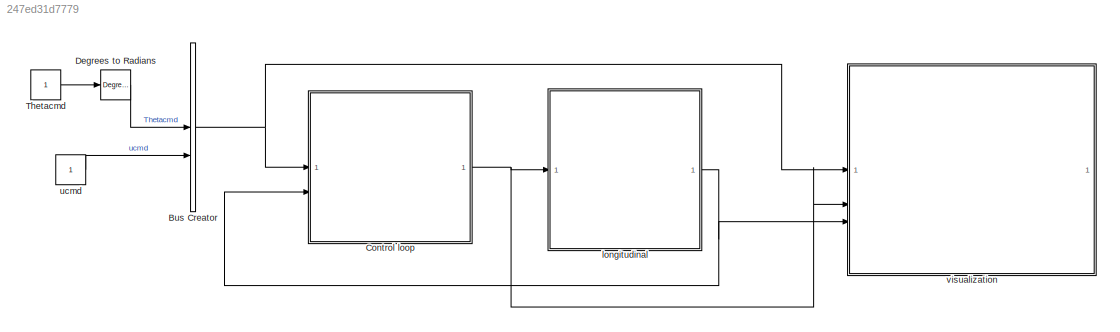
MODEL slx_247ed31d7779
KIND model
CONFIG AbsTol = auto
CONFIG EnableMultiTasking = off
CONFIG FixedStep = auto
CONFIG MaxStep = auto
CONFIG MinStep = auto
CONFIG RelTol = 1e-3
CONFIG SampleTimeConstraint = Unconstrained
CONFIG SolverName = VariableStepAuto
CONFIG StartTime = 0.0
CONFIG StopTime = 10.0
BLOCK [BusCreator] Bus Creator
  DisplayOption = bar
  InheritFromInputs = on
  Inputs = 2
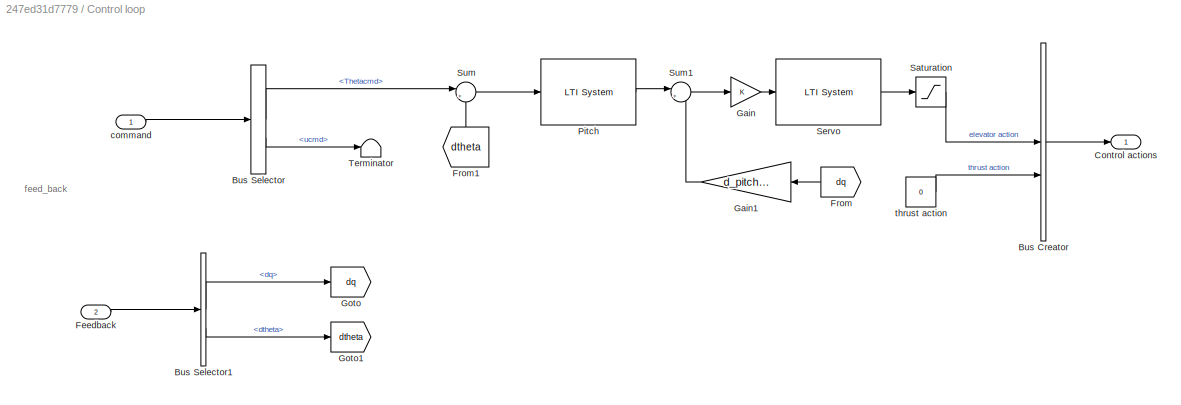
BLOCK [SubSystem] Control loop
BLOCK [BusCreator] Control loop/Bus Creator
  DisplayOption = bar
  InheritFromInputs = on
  Inputs = 2
BLOCK [BusSelector] Control loop/Bus Selector
  OutputSignals = Thetacmd,ucmd
BLOCK [BusSelector] Control loop/Bus Selector1
  OutputSignals = dq,dtheta
BLOCK [Outport] Control loop/Control actions
BLOCK [Inport] Control loop/Feedback
  Port = 2
BLOCK [From] Control loop/From
  GotoTag = dq
  NameLocation = top
BLOCK [From] Control loop/From1
  GotoTag = dtheta
  NameLocation = right
BLOCK [Gain] Control loop/Gain
BLOCK [Gain] Control loop/Gain1
  Gain = d_pitch.k
  NameLocation = top
BLOCK [Goto] Control loop/Goto
  GotoTag = dq
BLOCK [Goto] Control loop/Goto1
  GotoTag = dtheta
BLOCK [Reference] Control loop/Pitch  REF=cstblocks/LTI System
  SourceBlock = cstblocks/LTI System
  SourceType = LTI Block
BLOCK [Saturate] Control loop/Saturation
BLOCK [Reference] Control loop/Servo  REF=cstblocks/LTI System
  SourceBlock = cstblocks/LTI System
  SourceType = LTI Block
BLOCK [Sum] Control loop/Sum
  Inputs = |+-
BLOCK [Sum] Control loop/Sum1
  Inputs = |++
BLOCK [Terminator] Control loop/Terminator
BLOCK [Inport] Control loop/command
BLOCK [Constant] Control loop/thrust action
  Value = 0
BLOCK [Reference] Degrees to Radians  REF=simulink_extras/Transformations/Degrees to
Radians
  SourceBlock = simulink_extras/Transformations/Degrees to\nRadians
  SourceType = DegreesToRadians
BLOCK [Constant] Thetacmd
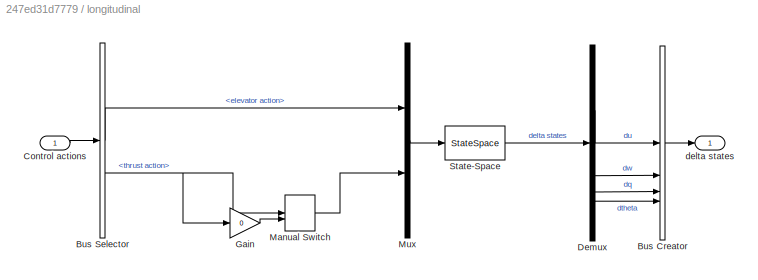
BLOCK [SubSystem] longitudinal
BLOCK [BusCreator] longitudinal/Bus Creator
  DisplayOption = bar
  InheritFromInputs = on
  Inputs = 4
BLOCK [BusSelector] longitudinal/Bus Selector
  OutputSignals = elevator action,thrust action
BLOCK [Inport] longitudinal/Control actions
BLOCK [Demux] longitudinal/Demux
BLOCK [Gain] longitudinal/Gain
  Gain = 0
BLOCK [ManualSwitch] longitudinal/Manual Switch
  CurrentSetting = 0
BLOCK [Mux] longitudinal/Mux
  DisplayOption = bar
  Inputs = 2
BLOCK [StateSpace] longitudinal/State-Space
  A = A_FL
  B = B_FL
  C = C_FL
  D = D_FL
  InitialCondition = 0
  ParameterTunability = Unconstrained
BLOCK [Outport] longitudinal/delta states
BLOCK [Constant] ucmd
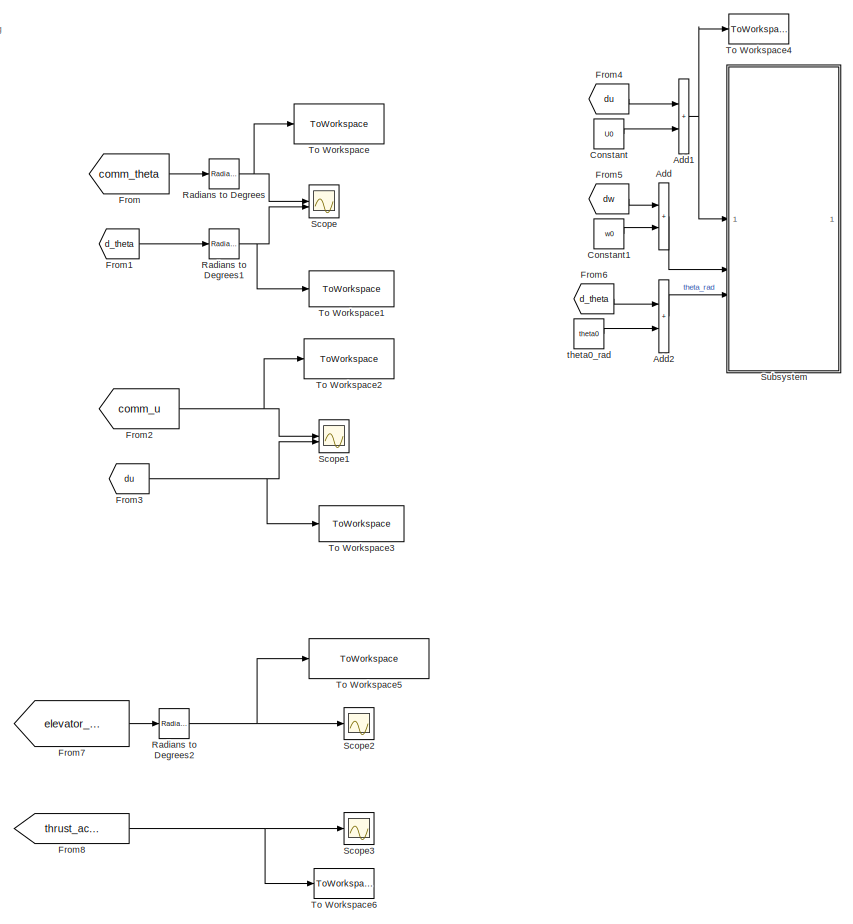
[diagram: visualization - part 1/2, right side, full height]
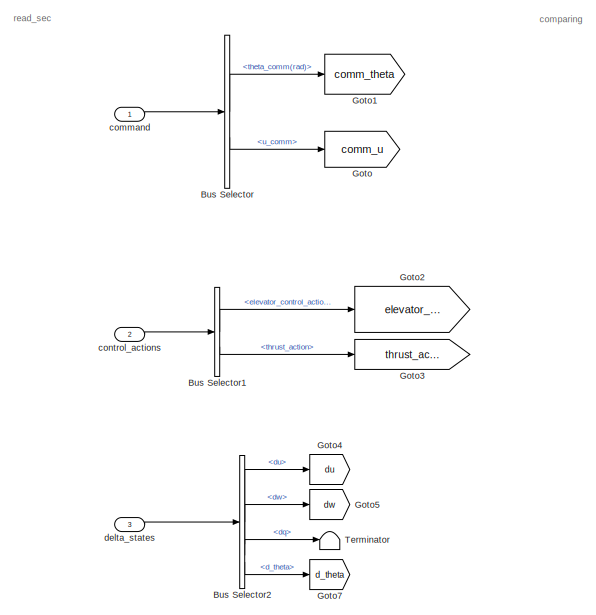
[diagram: visualization - part 2/2, middle left region]
BLOCK [SubSystem] visualization
BLOCK [Sum] visualization/Add
  IconShape = rectangular
BLOCK [Sum] visualization/Add1
  IconShape = rectangular
BLOCK [Sum] visualization/Add2
  IconShape = rectangular
BLOCK [BusSelector] visualization/Bus Selector
  OutputSignals = theta_comm(rad),u_comm
BLOCK [BusSelector] visualization/Bus Selector1
  OutputSignals = elevator_control_action,thrust_action
BLOCK [BusSelector] visualization/Bus Selector2
  OutputSignals = du,dw,dq,d_theta
BLOCK [Constant] visualization/Constant
  Value = U0
BLOCK [Constant] visualization/Constant1
  Value = w0
BLOCK [From] visualization/From
  GotoTag = comm_theta
BLOCK [From] visualization/From1
  GotoTag = d_theta
BLOCK [From] visualization/From2
  GotoTag = comm_u
BLOCK [From] visualization/From3
  GotoTag = du
BLOCK [From] visualization/From4
  GotoTag = du
BLOCK [From] visualization/From5
  GotoTag = dw
BLOCK [From] visualization/From6
  GotoTag = d_theta
BLOCK [From] visualization/From7
  GotoTag = elevator_action_rad
BLOCK [From] visualization/From8
  GotoTag = thrust_action
BLOCK [Goto] visualization/Goto
  GotoTag = comm_u
BLOCK [Goto] visualization/Goto1
  GotoTag = comm_theta
BLOCK [Goto] visualization/Goto2
  GotoTag = elevator_action_rad
BLOCK [Goto] visualization/Goto3
  GotoTag = thrust_action
BLOCK [Goto] visualization/Goto4
  GotoTag = du
BLOCK [Goto] visualization/Goto5
  GotoTag = dw
BLOCK [Goto] visualization/Goto7
  GotoTag = d_theta
BLOCK [Reference] visualization/Radians to Degrees  REF=simulink_extras/Transformations/Radians
to Degrees
  SourceBlock = simulink_extras/Transformations/Radians\nto Degrees
  SourceType = RadiansToDegrees
BLOCK [Reference] visualization/Radians to Degrees1  REF=simulink_extras/Transformations/Radians
to Degrees
  SourceBlock = simulink_extras/Transformations/Radians\nto Degrees
  SourceType = RadiansToDegrees
BLOCK [Reference] visualization/Radians to Degrees2  REF=simulink_extras/Transformations/Radians
to Degrees
  SourceBlock = simulink_extras/Transformations/Radians\nto Degrees
  SourceType = RadiansToDegrees
BLOCK [Scope] visualization/Scope
  Floating = off
  NumInputPorts = 2
  ScopeSpecificationString = Simulink.scopes.TimeScopeBlockCfg('CurrentConfiguration', extmgr.ConfigurationSet(extmgr.Configuration('Core','General UI',true,'FigureColor',[0 0 0]),extmgr.Configuration('Core','Source UI',true),extmgr.Configuration('Sources','WiredSimulink',true),extmgr.Configuration('Visuals','Time Domain',true,'SerializedDisplays',{struct('MinYLimReal','-2.37686','MaxYLimReal','21.39172','YLabelReal','','MinY...<+1523ch>
BLOCK [Scope] visualization/Scope1
  Floating = off
  NumInputPorts = 2
  ScopeSpecificationString = Simulink.scopes.TimeScopeBlockCfg('CurrentConfiguration', extmgr.ConfigurationSet(extmgr.Configuration('Core','General UI',true),extmgr.Configuration('Core','Source UI',true),extmgr.Configuration('Sources','WiredSimulink',true,'DataLoggingVariableName','ScopeData1'),extmgr.Configuration('Visuals','Time Domain',true,'SerializedDisplays',{struct('MinYLimReal','-1297.02637','MaxYLimReal','144.11404',...<+1394ch>
BLOCK [Scope] visualization/Scope2
  Floating = off
  NumInputPorts = 1
  ScopeSpecificationString = Simulink.scopes.TimeScopeBlockCfg('CurrentConfiguration', extmgr.ConfigurationSet(extmgr.Configuration('Core','General UI',true),extmgr.Configuration('Core','Source UI',true),extmgr.Configuration('Sources','WiredSimulink',true,'DataLoggingVariableName','ScopeData5'),extmgr.Configuration('Visuals','Time Domain',true,'SerializedDisplays',{struct('MinYLimReal','-23.84872','MaxYLimReal','3.14905','YLa...<+1412ch>
BLOCK [Scope] visualization/Scope3
  Floating = off
  NumInputPorts = 1
  ScopeSpecificationString = Simulink.scopes.TimeScopeBlockCfg('CurrentConfiguration', extmgr.ConfigurationSet(extmgr.Configuration('Core','General UI',true),extmgr.Configuration('Core','Source UI',true),extmgr.Configuration('Sources','WiredSimulink',true,'DataLoggingVariableName','ScopeData6'),extmgr.Configuration('Visuals','Time Domain',true),extmgr.Configuration('Tools','Plot Navigation',true),extmgr.Configuration('Tools',...<+40ch>
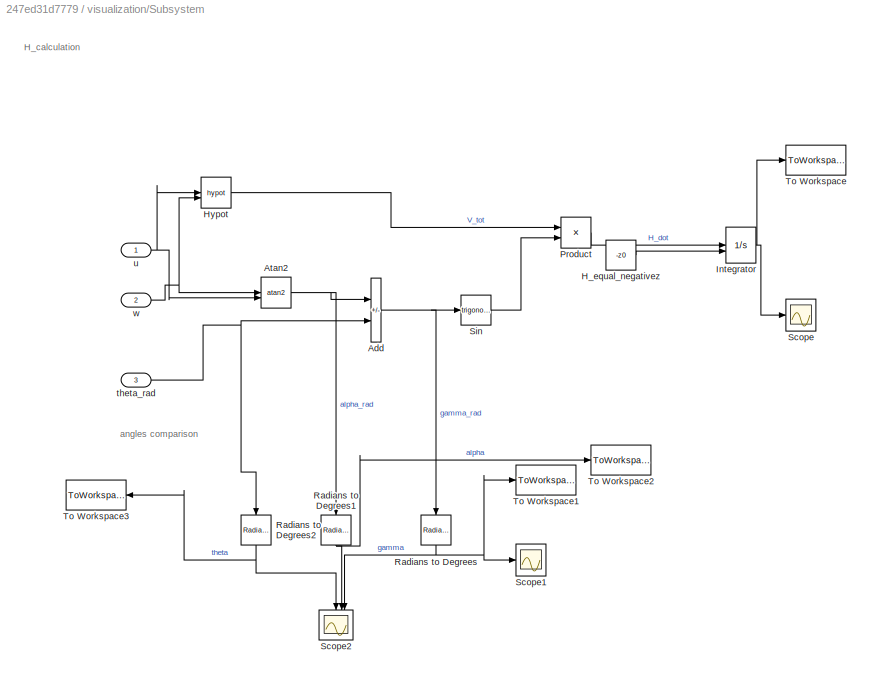
BLOCK [SubSystem] visualization/Subsystem
BLOCK [Sum] visualization/Subsystem/Add
  IconShape = rectangular
  Inputs = -+
BLOCK [Trigonometry] visualization/Subsystem/Atan2
  Operator = atan2
BLOCK [Constant] visualization/Subsystem/H_equal_negativez
  Value = -z0
BLOCK [Math] visualization/Subsystem/Hypot
  Operator = hypot
  SignedPower = on
BLOCK [Integrator] visualization/Subsystem/Integrator
  InitialConditionSource = external
BLOCK [Product] visualization/Subsystem/Product
BLOCK [Reference] visualization/Subsystem/Radians to Degrees  REF=simulink_extras/Transformations/Radians
to Degrees
  NameLocation = left
  SourceBlock = simulink_extras/Transformations/Radians\nto Degrees
  SourceType = RadiansToDegrees
BLOCK [Reference] visualization/Subsystem/Radians to Degrees1  REF=simulink_extras/Transformations/Radians
to Degrees
  NameLocation = left
  SourceBlock = simulink_extras/Transformations/Radians\nto Degrees
  SourceType = RadiansToDegrees
BLOCK [Reference] visualization/Subsystem/Radians to Degrees2  REF=simulink_extras/Transformations/Radians
to Degrees
  NameLocation = left
  SourceBlock = simulink_extras/Transformations/Radians\nto Degrees
  SourceType = RadiansToDegrees
BLOCK [Scope] visualization/Subsystem/Scope
  Floating = off
  NumInputPorts = 1
  ScopeSpecificationString = Simulink.scopes.TimeScopeBlockCfg('CurrentConfiguration', extmgr.ConfigurationSet(extmgr.Configuration('Core','General UI',true),extmgr.Configuration('Core','Source UI',true),extmgr.Configuration('Sources','WiredSimulink',true,'DataLoggingVariableName','ScopeData2'),extmgr.Configuration('Visuals','Time Domain',true,'SerializedDisplays',{struct('MinYLimReal','15532.36158','MaxYLimReal','25441.01896...<+1399ch>
BLOCK [Scope] visualization/Subsystem/Scope1
  Floating = off
  NumInputPorts = 1
  ScopeSpecificationString = Simulink.scopes.TimeScopeBlockCfg('CurrentConfiguration', extmgr.ConfigurationSet(extmgr.Configuration('Core','General UI',true),extmgr.Configuration('Core','Source UI',true),extmgr.Configuration('Sources','WiredSimulink',true,'DataLoggingVariableName','ScopeData3'),extmgr.Configuration('Visuals','Time Domain',true,'SerializedDisplays',{struct('MinYLimReal','-164.81905','MaxYLimReal','47.75217','Y...<+1409ch>
BLOCK [Scope] visualization/Subsystem/Scope2
  Floating = off
  NameLocation = left
  NumInputPorts = 3
  ScopeSpecificationString = Simulink.scopes.TimeScopeBlockCfg('CurrentConfiguration', extmgr.ConfigurationSet(extmgr.Configuration('Core','General UI',true),extmgr.Configuration('Core','Source UI',true),extmgr.Configuration('Sources','WiredSimulink',true,'DataLoggingVariableName','ScopeData4'),extmgr.Configuration('Visuals','Time Domain',true,'SerializedDisplays',{struct('MinYLimReal','-170.38597','MaxYLimReal','186.1835','Y...<+1424ch>
BLOCK [Trigonometry] visualization/Subsystem/Sin
BLOCK [ToWorkspace] visualization/Subsystem/To Workspace
  FixptAsFi = on
  MaxDataPoints = inf
  SampleTime = -1
  VariableName = airpalne_height
BLOCK [ToWorkspace] visualization/Subsystem/To Workspace1
  FixptAsFi = on
  MaxDataPoints = inf
  SampleTime = -1
  VariableName = gamma_deg
BLOCK [ToWorkspace] visualization/Subsystem/To Workspace2
  FixptAsFi = on
  MaxDataPoints = inf
  SampleTime = -1
  VariableName = alpha_deg
BLOCK [ToWorkspace] visualization/Subsystem/To Workspace3
  FixptAsFi = on
  MaxDataPoints = inf
  NameLocation = top
  SampleTime = -1
  VariableName = theta_tot_deg
BLOCK [Inport] visualization/Subsystem/theta_rad
  Port = 3
BLOCK [Inport] visualization/Subsystem/u
BLOCK [Inport] visualization/Subsystem/w
  Port = 2
BLOCK [Terminator] visualization/Terminator
BLOCK [ToWorkspace] visualization/To Workspace
  FixptAsFi = on
  MaxDataPoints = inf
  SampleTime = -1
  VariableName = command_theta_deg
BLOCK [ToWorkspace] visualization/To Workspace1
  FixptAsFi = on
  MaxDataPoints = inf
  SampleTime = -1
  VariableName = delta_theta_deg
BLOCK [ToWorkspace] visualization/To Workspace2
  FixptAsFi = on
  MaxDataPoints = inf
  SampleTime = -1
  VariableName = command_u
BLOCK [ToWorkspace] visualization/To Workspace3
  FixptAsFi = on
  MaxDataPoints = inf
  SampleTime = -1
  VariableName = delta_u
BLOCK [ToWorkspace] visualization/To Workspace4
  FixptAsFi = on
  MaxDataPoints = inf
  SampleTime = -1
  SaveFormat = Timeseries
  VariableName = u_response
BLOCK [ToWorkspace] visualization/To Workspace5
  FixptAsFi = on
  MaxDataPoints = inf
  SampleTime = -1
  VariableName = elevator_action_deg
BLOCK [ToWorkspace] visualization/To Workspace6
  FixptAsFi = on
  MaxDataPoints = inf
  SampleTime = -1
  VariableName = thrust_action
BLOCK [Inport] visualization/command
BLOCK [Inport] visualization/control_actions
  Port = 2
BLOCK [Inport] visualization/delta_states
  Port = 3
BLOCK [Constant] visualization/theta0_rad
  Value = theta0
ANNOTATION Control loop: feed_back
ANNOTATION visualization: comparing
ANNOTATION visualization: read_sec
ANNOTATION visualization/Subsystem: H_calculation
ANNOTATION visualization/Subsystem: angles comparison
NET Bus Creator:1 -> Control loop:1, visualization:1
LINE Control loop/Bus Creator:1 -> Control loop/Control actions:1
LINE Control loop/Bus Selector1:1 -> Control loop/Goto:1
LINE Control loop/Bus Selector1:2 -> Control loop/Goto1:1
LINE Control loop/Bus Selector:1 -> Control loop/Sum:1
LINE Control loop/Bus Selector:2 -> Control loop/Terminator:1
LINE Control loop/Feedback:1 -> Control loop/Bus Selector1:1
LINE Control loop/From1:1 -> Control loop/Sum:2
LINE Control loop/From:1 -> Control loop/Gain1:1
LINE Control loop/Gain1:1 -> Control loop/Sum1:2
LINE Control loop/Gain:1 -> Control loop/Servo:1
LINE Control loop/Pitch:1 -> Control loop/Sum1:1
LINE Control loop/Saturation:1 -> Control loop/Bus Creator:1
LINE Control loop/Servo:1 -> Control loop/Saturation:1
LINE Control loop/Sum1:1 -> Control loop/Gain:1
LINE Control loop/Sum:1 -> Control loop/Pitch:1
LINE Control loop/command:1 -> Control loop/Bus Selector:1
LINE Control loop/thrust action:1 -> Control loop/Bus Creator:2
NET Control loop:1 -> longitudinal:1, visualization:2
LINE Degrees to Radians:1 -> Bus Creator:1
LINE Thetacmd:1 -> Degrees to Radians:1
LINE longitudinal/Bus Creator:1 -> longitudinal/delta states:1
LINE longitudinal/Bus Selector:1 -> longitudinal/Mux:1
NET longitudinal/Bus Selector:2 -> longitudinal/Gain:1, longitudinal/Manual Switch:1
LINE longitudinal/Control actions:1 -> longitudinal/Bus Selector:1
LINE longitudinal/Demux:1 -> longitudinal/Bus Creator:1
LINE longitudinal/Demux:2 -> longitudinal/Bus Creator:2
LINE longitudinal/Demux:3 -> longitudinal/Bus Creator:3
LINE longitudinal/Demux:4 -> longitudinal/Bus Creator:4
LINE longitudinal/Gain:1 -> longitudinal/Manual Switch:2
LINE longitudinal/Manual Switch:1 -> longitudinal/Mux:2
LINE longitudinal/Mux:1 -> longitudinal/State-Space:1
LINE longitudinal/State-Space:1 -> longitudinal/Demux:1
NET longitudinal:1 -> Control loop:2, visualization:3
LINE ucmd:1 -> Bus Creator:2
NET visualization/Add1:1 -> visualization/Subsystem:1, visualization/To Workspace4:1
LINE visualization/Add2:1 -> visualization/Subsystem:3
LINE visualization/Add:1 -> visualization/Subsystem:2
LINE visualization/Bus Selector1:1 -> visualization/Goto2:1
LINE visualization/Bus Selector1:2 -> visualization/Goto3:1
LINE visualization/Bus Selector2:1 -> visualization/Goto4:1
LINE visualization/Bus Selector2:2 -> visualization/Goto5:1
LINE visualization/Bus Selector2:3 -> visualization/Terminator:1
LINE visualization/Bus Selector2:4 -> visualization/Goto7:1
LINE visualization/Bus Selector:1 -> visualization/Goto1:1
LINE visualization/Bus Selector:2 -> visualization/Goto:1
LINE visualization/Constant1:1 -> visualization/Add:2
LINE visualization/Constant:1 -> visualization/Add1:2
LINE visualization/From1:1 -> visualization/Radians to Degrees1:1
NET visualization/From2:1 -> visualization/Scope1:1, visualization/To Workspace2:1
NET visualization/From3:1 -> visualization/Scope1:2, visualization/To Workspace3:1
LINE visualization/From4:1 -> visualization/Add1:1
LINE visualization/From5:1 -> visualization/Add:1
LINE visualization/From6:1 -> visualization/Add2:1
LINE visualization/From7:1 -> visualization/Radians to Degrees2:1
NET visualization/From8:1 -> visualization/Scope3:1, visualization/To Workspace6:1
LINE visualization/From:1 -> visualization/Radians to Degrees:1
NET visualization/Radians to Degrees1:1 -> visualization/Scope:2, visualization/To Workspace1:1
NET visualization/Radians to Degrees2:1 -> visualization/Scope2:1, visualization/To Workspace5:1
NET visualization/Radians to Degrees:1 -> visualization/Scope:1, visualization/To Workspace:1
NET visualization/Subsystem/Add:1 -> visualization/Subsystem/Radians to Degrees:1, visualization/Subsystem/Sin:1
NET visualization/Subsystem/Atan2:1 -> visualization/Subsystem/Add:1, visualization/Subsystem/Radians to Degrees1:1
LINE visualization/Subsystem/H_equal_negativez:1 -> visualization/Subsystem/Integrator:2
LINE visualization/Subsystem/Hypot:1 -> visualization/Subsystem/Product:1
NET visualization/Subsystem/Integrator:1 -> visualization/Subsystem/Scope:1, visualization/Subsystem/To Workspace:1
LINE visualization/Subsystem/Product:1 -> visualization/Subsystem/Integrator:1
NET visualization/Subsystem/Radians to Degrees1:1 -> visualization/Subsystem/Scope2:2, visualization/Subsystem/To Workspace2:1
NET visualization/Subsystem/Radians to Degrees2:1 -> visualization/Subsystem/Scope2:1, visualization/Subsystem/To Workspace3:1
NET visualization/Subsystem/Radians to Degrees:1 -> visualization/Subsystem/Scope1:1, visualization/Subsystem/Scope2:3, visualization/Subsystem/To Workspace1:1
LINE visualization/Subsystem/Sin:1 -> visualization/Subsystem/Product:2
NET visualization/Subsystem/theta_rad:1 -> visualization/Subsystem/Add:2, visualization/Subsystem/Radians to Degrees2:1
NET visualization/Subsystem/u:1 -> visualization/Subsystem/Atan2:2, visualization/Subsystem/Hypot:1
NET visualization/Subsystem/w:1 -> visualization/Subsystem/Atan2:1, visualization/Subsystem/Hypot:2
LINE visualization/command:1 -> visualization/Bus Selector:1
LINE visualization/control_actions:1 -> visualization/Bus Selector1:1
LINE visualization/delta_states:1 -> visualization/Bus Selector2:1
LINE visualization/theta0_rad:1 -> visualization/Add2:2
note: NET lines group one-source signal fan-out (src -> all destinations, sorted); 1:1 wires keep LINE
